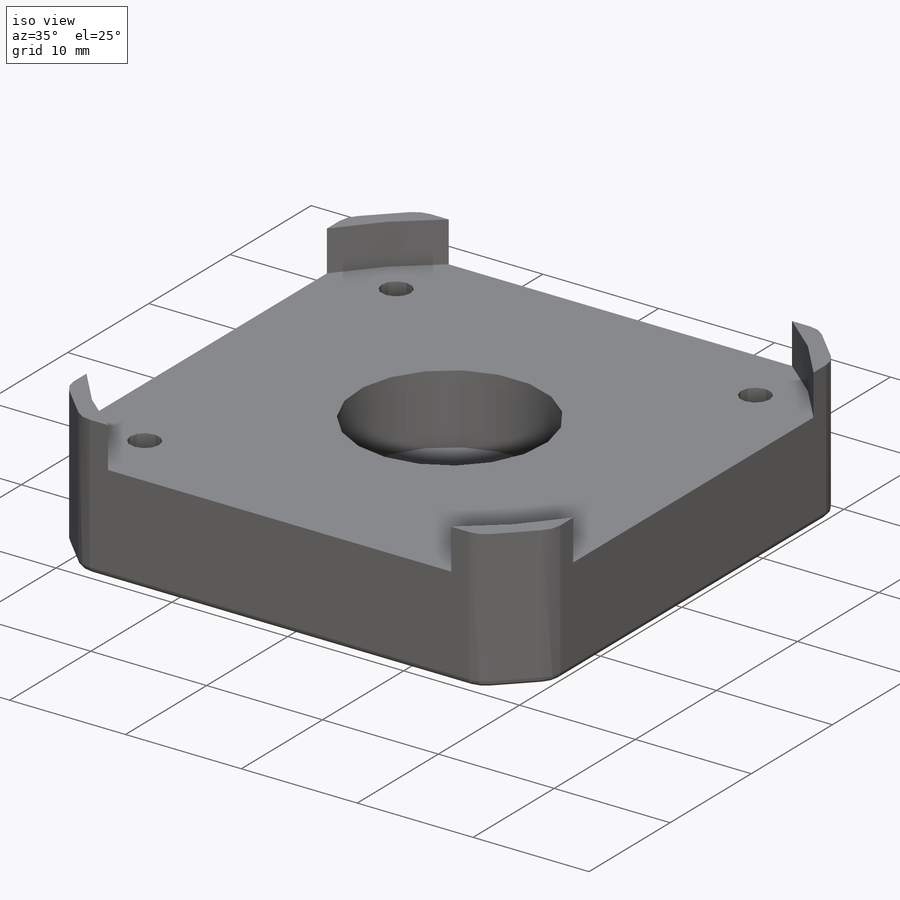
[diagram: iso view]
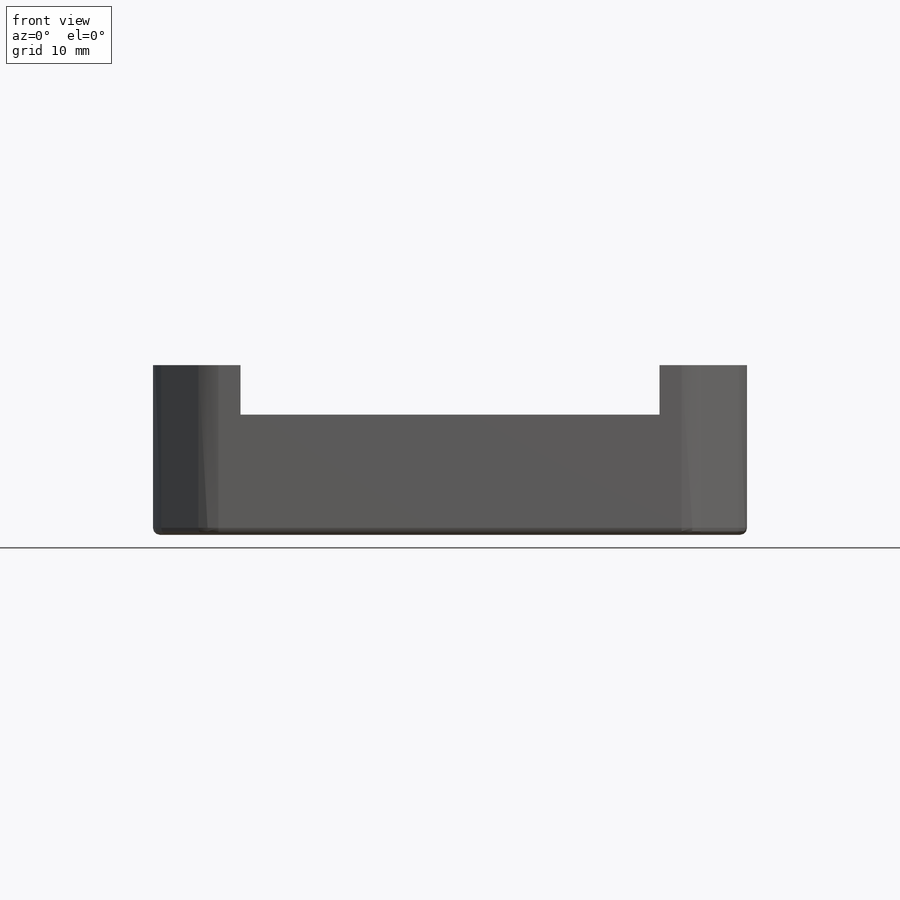
[diagram: front view]
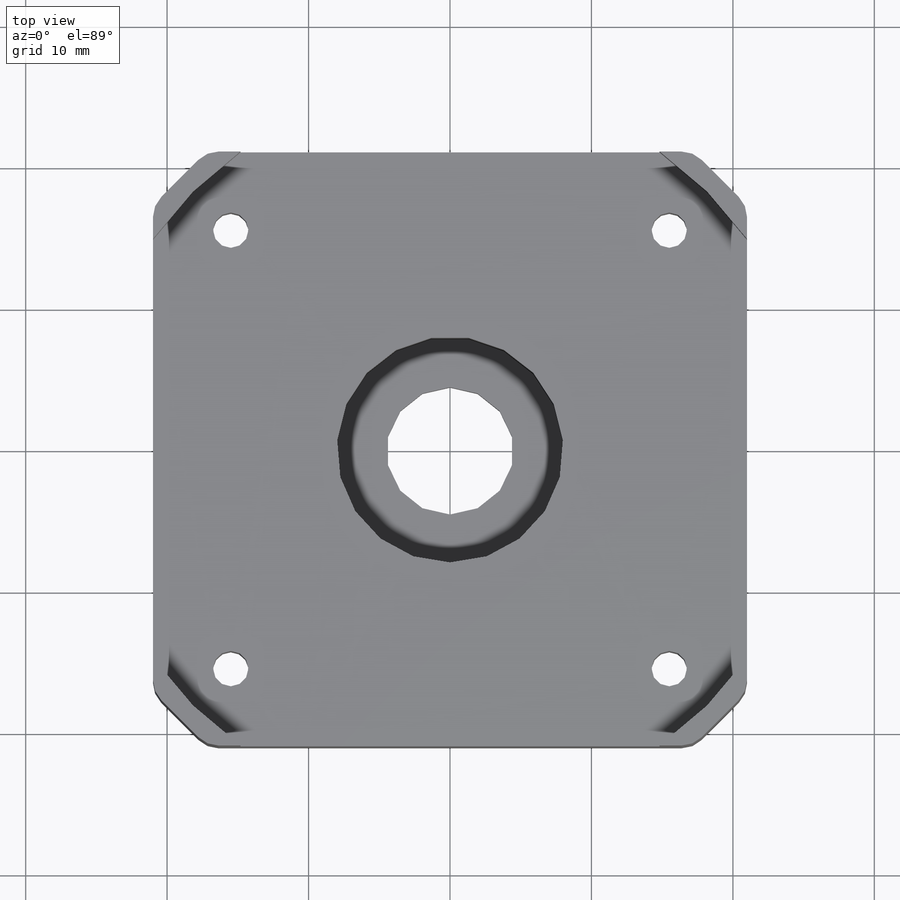
[diagram: top view]
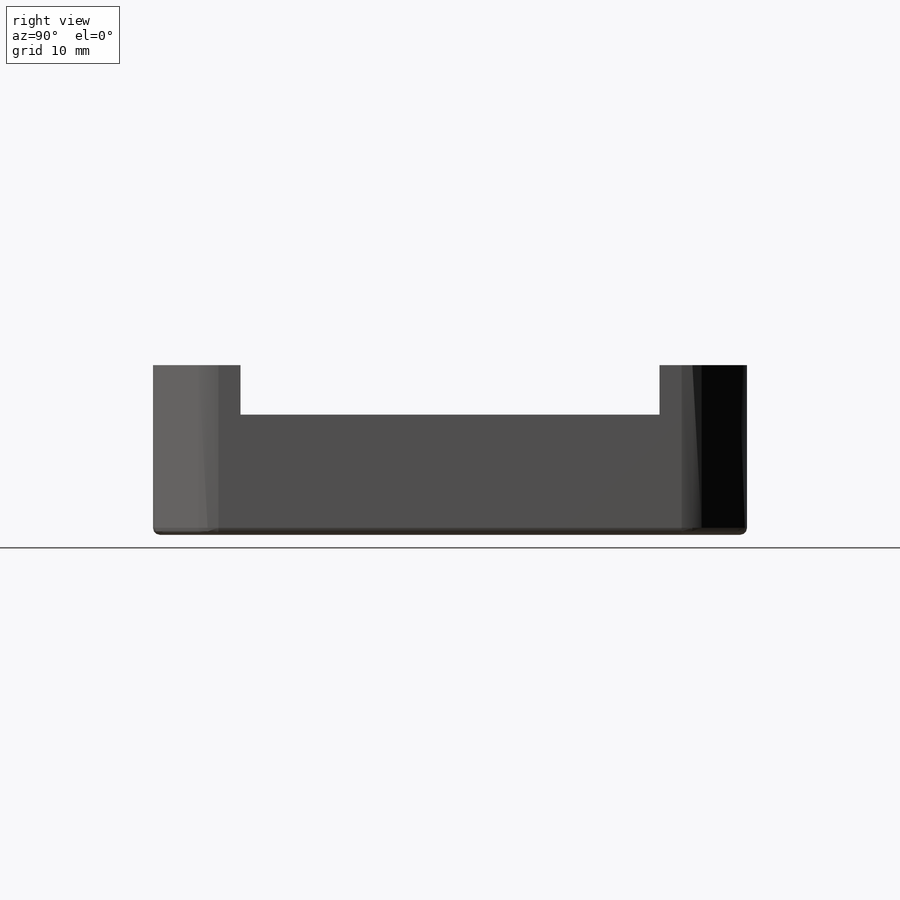
[diagram: right view]
SOLIDWORKS PART (.sldprt)
format: sldprt  version: not decoded by parser v0  size: 344,576 bytes
history: native  units: mm
features: sketch x4, plane x3, extrude x3, fillet x2, material x1, chamfer x1, cut_extrude x1 (+9 scaffold rows collapsed)
feature tree (24):
  scaffold x9  (default folders/planes/origin — collapsed)
  material  "Материал <не указан>"
  plane  "Спереди"
  plane  "Сверху"
  plane  "Справа"
  sketch  "Эскиз1"  dims[c1.D1=2.5mm c1.D2=5.3mm c1.D3=9.0mm c1.D8=22.0mm c1.D9=33.0mm c1.D10=25.7mm c1.D13=25.6mm c2.D1=42.0mm c2.D2=42.0mm c3.D1=31.0mm c3.D2=31.0mm c3.D11=31.0mm c3.D12=34.4mm]
  extrude  "Бобышка-Вытянуть1"  Depth=8.5mm
  extrude  "Бобышка-Вытянуть2"  [1 undecoded]
  sketch  "Эскиз1<4>"  dims[D1=12.0mm]
  chamfer  "Фаска1"  Distance=2.5mm Angle=45deg
  sketch  "Эскиз2"  dims[D1=~10.111447mm]
  cut_extrude  "Вырез-Вытянуть1"  Depth=6mm
  fillet  "Скругление1"  Radius=2mm
  fillet  "Скругление2"  Radius=0.5mm
  sketch  "Эскиз3"  dims[c1.D1=~7.977346mm c1.D2=~8.11219mm c2.D1=~5.529977mm c2.D2=~6.151718mm]
  extrude  "Бобышка-Вытянуть3"  Depth=0.5mm
decode coverage: 10 of 11 modeling features carry decoded parameters
note: ~ marks probable driven/reference dimensions
note: 1 parameter value undecoded
note: suppression state not decoded; provenance and decode notes live in map.json
